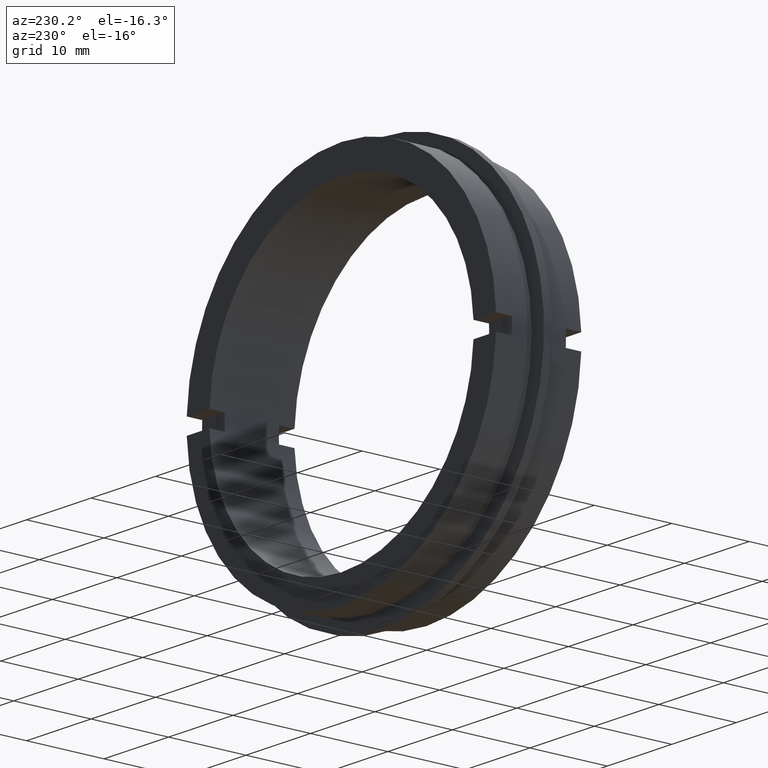
[diagram: clean part render]
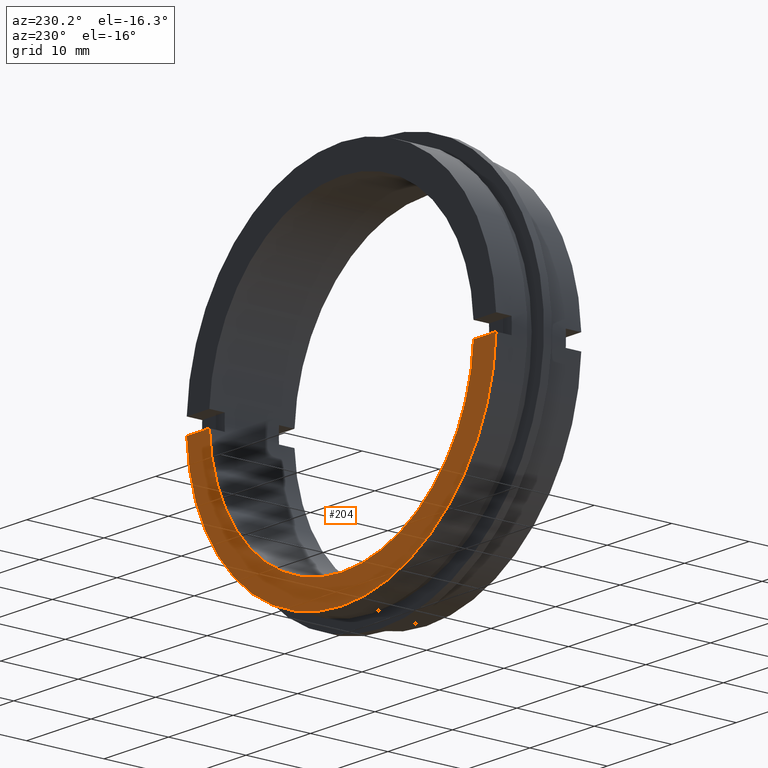
[diagram: same view with one face highlighted and labeled with its STEP entity id]
A machine part, auxiliary view. The second image highlights one B-rep face of the part: STEP entity #204.
In plain terms, the highlighted planar face has unit normal (-0, 1, 0).
Its self-contained STEP definition (entity closure, byte-faithful):
#7 = AXIS2_PLACEMENT_3D ( 'NONE', #222, #768, #811 ) ;
#24 = VECTOR ( 'NONE', #189, 1000.000000000000000 ) ;
#27 = DIRECTION ( 'NONE',  ( 0.0000000000000000000, 0.0000000000000000000, 1.000000000000000000 ) ) ;
#72 = DIRECTION ( 'NONE',  ( 0.0000000000000000000, 0.0000000000000000000, 1.000000000000000000 ) ) ;
#94 = CARTESIAN_POINT ( 'NONE',  ( 2.939152317953647900E-015, 11.00000000000000000, -24.00000000000000000 ) ) ;
#149 = AXIS2_PLACEMENT_3D ( 'NONE', #378, #1088, #27 ) ;
#188 = EDGE_LOOP ( 'NONE', ( #1067, #617, #648, #557, #473, #709 ) ) ;
#189 = DIRECTION ( 'NONE',  ( -1.000000000000000000, 0.0000000000000000000, 0.0000000000000000000 ) ) ;
#204 = ADVANCED_FACE ( 'NONE', ( #484 ), #780, .T. ) ;
#206 = EDGE_CURVE ( 'NONE', #209, #386, #507, .T. ) ;
#209 = VERTEX_POINT ( 'NONE', #1043 ) ;
#222 = CARTESIAN_POINT ( 'NONE',  ( 0.0000000000000000000, 11.00000000000000000, 0.0000000000000000000 ) ) ;
#245 = AXIS2_PLACEMENT_3D ( 'NONE', #1032, #427, #875 ) ;
#283 = CARTESIAN_POINT ( 'NONE',  ( -20.50000000000000000, 11.00000000000000000, -0.9999999999999978900 ) ) ;
#357 = VERTEX_POINT ( 'NONE', #799 ) ;
#378 = CARTESIAN_POINT ( 'NONE',  ( 0.0000000000000000000, 11.00000000000000000, 0.0000000000000000000 ) ) ;
#386 = VERTEX_POINT ( 'NONE', #447 ) ;
#427 = DIRECTION ( 'NONE',  ( -0.0000000000000000000, 1.000000000000000000, -0.0000000000000000000 ) ) ;
#437 = LINE ( 'NONE', #755, #596 ) ;
#443 = EDGE_CURVE ( 'NONE', #888, #209, #977, .T. ) ;
#447 = CARTESIAN_POINT ( 'NONE',  ( 2.510525938252074500E-015, 11.00000000000000000, -20.50000000000000000 ) ) ;
#473 = ORIENTED_EDGE ( 'NONE', *, *, #742, .F. ) ;
#484 = FACE_OUTER_BOUND ( 'NONE', #188, .T. ) ;
#497 = CIRCLE ( 'NONE', #245, 24.00000000000000000 ) ;
#507 = CIRCLE ( 'NONE', #610, 20.50000000000000000 ) ;
#520 = CIRCLE ( 'NONE', #7, 20.50000000000000000 ) ;
#541 = EDGE_CURVE ( 'NONE', #597, #357, #437, .T. ) ;
#557 = ORIENTED_EDGE ( 'NONE', *, *, #541, .F. ) ;
#560 = CARTESIAN_POINT ( 'NONE',  ( -20.47559522944327200, 11.00000000000000000, -0.9999999999999978900 ) ) ;
#596 = VECTOR ( 'NONE', #1103, 1000.000000000000000 ) ;
#597 = VERTEX_POINT ( 'NONE', #560 ) ;
#602 = CARTESIAN_POINT ( 'NONE',  ( 23.97915761656359700, 11.00000000000000000, -1.000000000000000000 ) ) ;
#605 = DIRECTION ( 'NONE',  ( -0.0000000000000000000, 1.000000000000000000, -0.0000000000000000000 ) ) ;
#610 = AXIS2_PLACEMENT_3D ( 'NONE', #1130, #605, #72 ) ;
#617 = ORIENTED_EDGE ( 'NONE', *, *, #624, .T. ) ;
#624 = EDGE_CURVE ( 'NONE', #888, #1034, #779, .T. ) ;
#648 = ORIENTED_EDGE ( 'NONE', *, *, #802, .T. ) ;
#667 = AXIS2_PLACEMENT_3D ( 'NONE', #687, #761, #869 ) ;
#687 = CARTESIAN_POINT ( 'NONE',  ( -20.50000000000000000, 11.00000000000000000, 0.0000000000000000000 ) ) ;
#709 = ORIENTED_EDGE ( 'NONE', *, *, #206, .F. ) ;
#742 = EDGE_CURVE ( 'NONE', #386, #597, #520, .T. ) ;
#755 = CARTESIAN_POINT ( 'NONE',  ( -20.50000000000000000, 11.00000000000000000, -0.9999999999999978900 ) ) ;
#761 = DIRECTION ( 'NONE',  ( -0.0000000000000000000, 1.000000000000000000, 0.0000000000000000000 ) ) ;
#768 = DIRECTION ( 'NONE',  ( -0.0000000000000000000, 1.000000000000000000, -0.0000000000000000000 ) ) ;
#779 = CIRCLE ( 'NONE', #149, 24.00000000000000000 ) ;
#780 = PLANE ( 'NONE',  #667 ) ;
#799 = CARTESIAN_POINT ( 'NONE',  ( -23.97915761656359700, 11.00000000000000000, -1.000000000000000000 ) ) ;
#802 = EDGE_CURVE ( 'NONE', #1034, #357, #497, .T. ) ;
#811 = DIRECTION ( 'NONE',  ( 0.0000000000000000000, 0.0000000000000000000, 1.000000000000000000 ) ) ;
#869 = DIRECTION ( 'NONE',  ( 0.0000000000000000000, 0.0000000000000000000, 1.000000000000000000 ) ) ;
#875 = DIRECTION ( 'NONE',  ( 0.0000000000000000000, 0.0000000000000000000, 1.000000000000000000 ) ) ;
#888 = VERTEX_POINT ( 'NONE', #602 ) ;
#977 = LINE ( 'NONE', #283, #24 ) ;
#1032 = CARTESIAN_POINT ( 'NONE',  ( 0.0000000000000000000, 11.00000000000000000, 0.0000000000000000000 ) ) ;
#1034 = VERTEX_POINT ( 'NONE', #94 ) ;
#1043 = CARTESIAN_POINT ( 'NONE',  ( 20.47559522944327200, 11.00000000000000000, -0.9999999999999978900 ) ) ;
#1067 = ORIENTED_EDGE ( 'NONE', *, *, #443, .F. ) ;
#1088 = DIRECTION ( 'NONE',  ( -0.0000000000000000000, 1.000000000000000000, -0.0000000000000000000 ) ) ;
#1103 = DIRECTION ( 'NONE',  ( -1.000000000000000000, 0.0000000000000000000, 0.0000000000000000000 ) ) ;
#1130 = CARTESIAN_POINT ( 'NONE',  ( 0.0000000000000000000, 11.00000000000000000, 0.0000000000000000000 ) ) ;